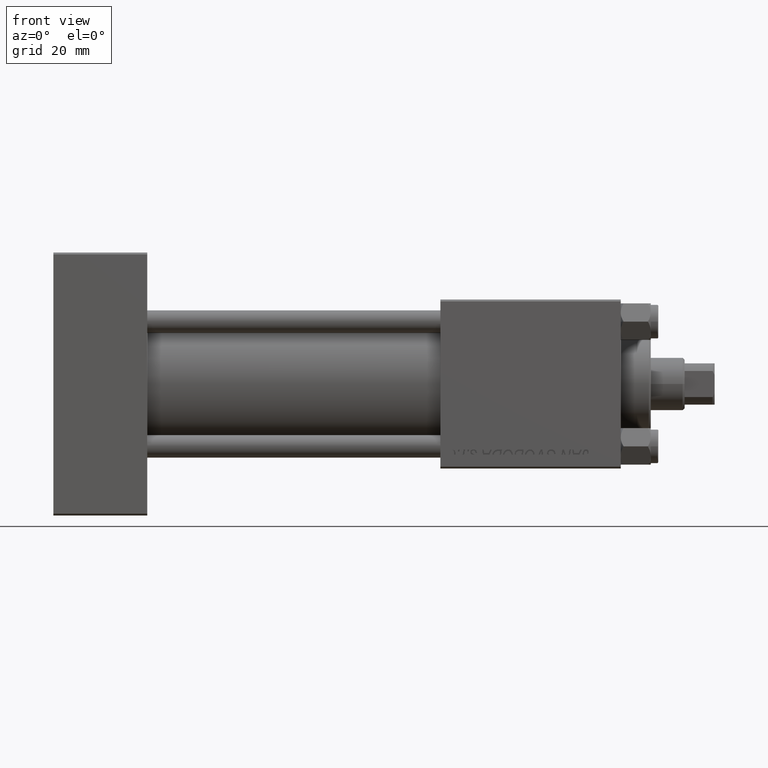
[diagram: clean part render]
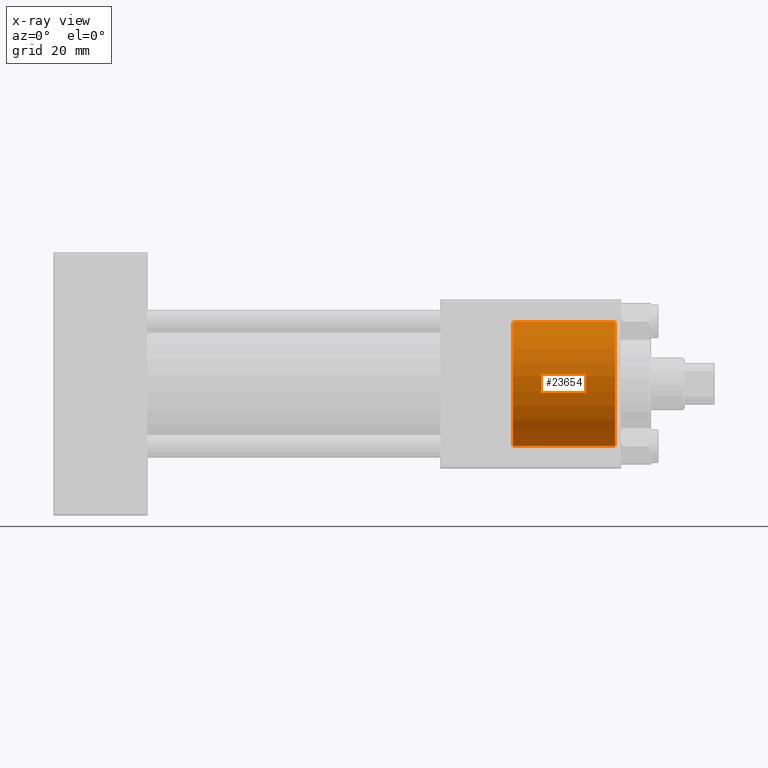
[diagram: x-ray — body ghosted, one internal face saturated and labeled with its STEP entity id]
A machine part, front view, then the same camera in x-ray: the body is ghosted and one INTERNAL B-rep face — a face not visible from any outside direction — is saturated and labeled: STEP entity #23654.
In plain terms, the highlighted cylindrical surface (partial cylindrical patch) has radius 16.5 mm, axis along (1, 0, 0).
Its self-contained STEP definition (entity closure, byte-faithful):
#573 = ORIENTED_EDGE ( 'NONE', *, *, #8757, .T. ) ;
#1262 = FACE_OUTER_BOUND ( 'NONE', #19241, .T. ) ;
#4997 = VERTEX_POINT ( 'NONE', #25007 ) ;
#5915 = CARTESIAN_POINT ( 'NONE',  ( 149.5000000000000284, 0.000000000000000000, -16.50000000000000000 ) ) ;
#6667 = AXIS2_PLACEMENT_3D ( 'NONE', #32075, #17415, #16920 ) ;
#6708 = DIRECTION ( 'NONE',  ( 1.000000000000000000, 0.000000000000000000, 0.000000000000000000 ) ) ;
#6959 = CARTESIAN_POINT ( 'NONE',  ( 122.3000000000000256, 0.000000000000000000, 0.000000000000000000 ) ) ;
#7542 = DIRECTION ( 'NONE',  ( 0.000000000000000000, 0.000000000000000000, 1.000000000000000000 ) ) ;
#8520 = CARTESIAN_POINT ( 'NONE',  ( 122.3000000000000256, 2.020667218593133100E-15, 16.50000000000000000 ) ) ;
#8724 = CIRCLE ( 'NONE', #45851, 16.50000000000000000 ) ;
#8757 = EDGE_CURVE ( 'NONE', #27139, #37819, #8724, .T. ) ;
#10084 = VERTEX_POINT ( 'NONE', #42492 ) ;
#11111 = ORIENTED_EDGE ( 'NONE', *, *, #37670, .F. ) ;
#11326 = CARTESIAN_POINT ( 'NONE',  ( 149.5000000000000284, 0.000000000000000000, 0.000000000000000000 ) ) ;
#12257 = ORIENTED_EDGE ( 'NONE', *, *, #29642, .T. ) ;
#14837 = AXIS2_PLACEMENT_3D ( 'NONE', #6959, #6708, #21884 ) ;
#15116 = LINE ( 'NONE', #22706, #49052 ) ;
#16664 = CYLINDRICAL_SURFACE ( 'NONE', #6667, 16.50000000000000000 ) ;
#16920 = DIRECTION ( 'NONE',  ( 0.000000000000000000, 0.000000000000000000, -1.000000000000000000 ) ) ;
#17415 = DIRECTION ( 'NONE',  ( 1.000000000000000000, -0.000000000000000000, -0.000000000000000000 ) ) ;
#19241 = EDGE_LOOP ( 'NONE', ( #23011, #12257, #573, #11111 ) ) ;
#21884 = DIRECTION ( 'NONE',  ( 0.000000000000000000, 0.000000000000000000, -1.000000000000000000 ) ) ;
#22706 = CARTESIAN_POINT ( 'NONE',  ( 122.3000000000000256, 0.000000000000000000, -16.50000000000000000 ) ) ;
#23011 = ORIENTED_EDGE ( 'NONE', *, *, #26421, .F. ) ;
#23654 = ADVANCED_FACE ( 'NONE', ( #1262 ), #16664, .F. ) ;
#25007 = CARTESIAN_POINT ( 'NONE',  ( 122.3000000000000256, 2.020667218593133100E-15, 16.50000000000000000 ) ) ;
#26421 = EDGE_CURVE ( 'NONE', #4997, #10084, #38225, .T. ) ;
#27139 = VERTEX_POINT ( 'NONE', #35285 ) ;
#27729 = LINE ( 'NONE', #8520, #29320 ) ;
#29320 = VECTOR ( 'NONE', #43639, 1000.000000000000000 ) ;
#29642 = EDGE_CURVE ( 'NONE', #4997, #27139, #27729, .T. ) ;
#32075 = CARTESIAN_POINT ( 'NONE',  ( 122.3000000000000256, 0.000000000000000000, 0.000000000000000000 ) ) ;
#35285 = CARTESIAN_POINT ( 'NONE',  ( 149.5000000000000284, 2.020667218593133100E-15, 16.50000000000000000 ) ) ;
#37670 = EDGE_CURVE ( 'NONE', #10084, #37819, #15116, .T. ) ;
#37819 = VERTEX_POINT ( 'NONE', #5915 ) ;
#37852 = DIRECTION ( 'NONE',  ( 1.000000000000000000, -0.000000000000000000, -0.000000000000000000 ) ) ;
#38225 = CIRCLE ( 'NONE', #14837, 16.50000000000000000 ) ;
#42156 = DIRECTION ( 'NONE',  ( 1.000000000000000000, 0.000000000000000000, 0.000000000000000000 ) ) ;
#42492 = CARTESIAN_POINT ( 'NONE',  ( 122.3000000000000256, 0.000000000000000000, -16.50000000000000000 ) ) ;
#43639 = DIRECTION ( 'NONE',  ( 1.000000000000000000, -0.000000000000000000, -0.000000000000000000 ) ) ;
#45851 = AXIS2_PLACEMENT_3D ( 'NONE', #11326, #42156, #7542 ) ;
#49052 = VECTOR ( 'NONE', #37852, 1000.000000000000000 ) ;